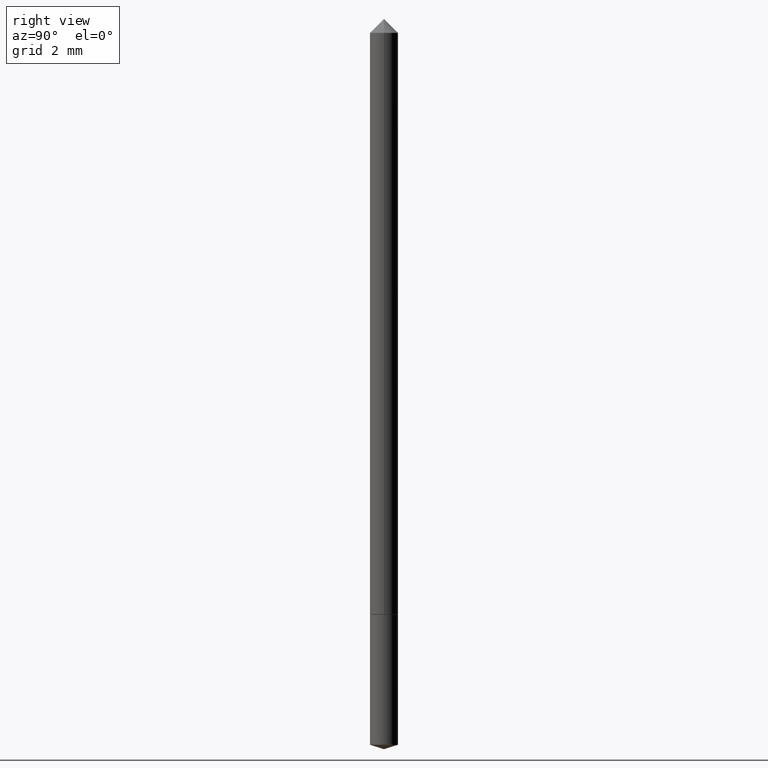
[diagram: clean part render]
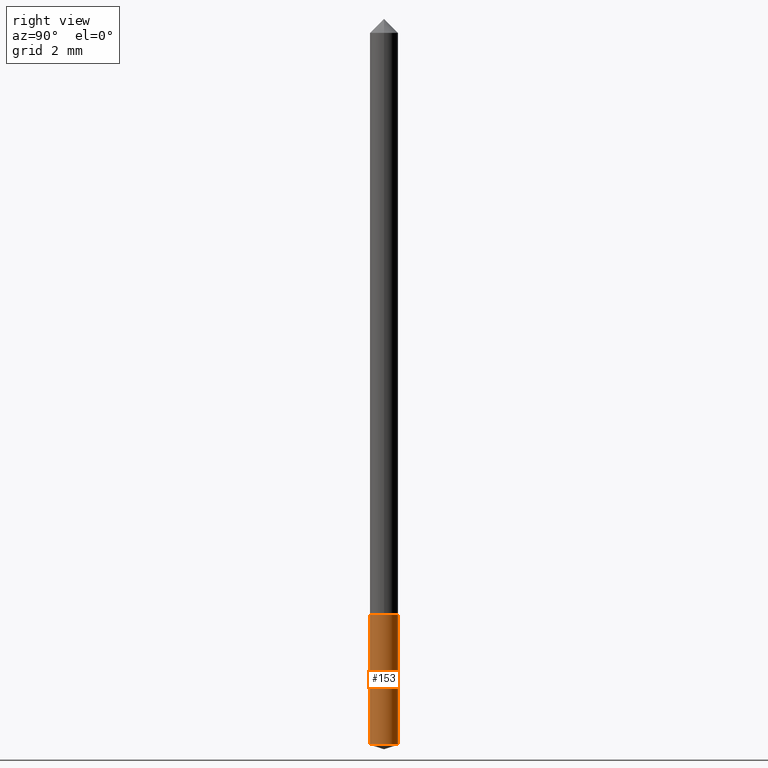
[diagram: same view with one face highlighted and labeled with its STEP entity id]
A machine part, right view. The second image highlights one B-rep face of the part: STEP entity #153.
In plain terms, the highlighted cylindrical surface (edge-blend (fillet) strip) has radius 0.475 mm, axis along (-0, 0, 1).
Its self-contained STEP definition (entity closure, byte-faithful):
#17 = ORIENTED_EDGE ( 'NONE', *, *, #246, .F. ) ;
#38 = DIRECTION ( 'NONE',  ( -2.445520407975564975E-29, 3.491407442142260390E-15, 1.000000000000000000 ) ) ;
#43 = ORIENTED_EDGE ( 'NONE', *, *, #90, .T. ) ;
#46 = CIRCLE ( 'NONE', #220, 0.01870000000000000134 ) ;
#49 = ORIENTED_EDGE ( 'NONE', *, *, #125, .F. ) ;
#70 = CARTESIAN_POINT ( 'NONE',  ( 1.328714915871626320E-16, 0.01869999999999657700, -0.9784039126479632253 ) ) ;
#73 = DIRECTION ( 'NONE',  ( -2.445520407975564975E-29, 3.491407442142260390E-15, 1.000000000000000000 ) ) ;
#77 = AXIS2_PLACEMENT_3D ( 'NONE', #202, #73, #248 ) ;
#79 = LINE ( 'NONE', #354, #183 ) ;
#88 = VERTEX_POINT ( 'NONE', #174 ) ;
#90 = EDGE_CURVE ( 'NONE', #363, #88, #79, .T. ) ;
#118 = DIRECTION ( 'NONE',  ( -2.445520407975564975E-29, 3.491407442142260390E-15, 1.000000000000000000 ) ) ;
#122 = LINE ( 'NONE', #235, #173 ) ;
#125 = EDGE_CURVE ( 'NONE', #335, #88, #46, .T. ) ;
#139 = EDGE_LOOP ( 'NONE', ( #304, #43, #49, #17 ) ) ;
#146 = EDGE_CURVE ( 'NONE', #313, #363, #226, .T. ) ;
#153 = ADVANCED_FACE ( 'NONE', ( #272 ), #301, .T. ) ;
#173 = VECTOR ( 'NONE', #118, 39.37007874015748143 ) ;
#174 = CARTESIAN_POINT ( 'NONE',  ( 1.328714915871626813E-16, 0.01869999999999719109, -0.8051999999999999158 ) ) ;
#183 = VECTOR ( 'NONE', #279, 39.37007874015748143 ) ;
#202 = CARTESIAN_POINT ( 'NONE',  ( 2.392665185862083405E-29, -3.416066203663757391E-15, -0.9784039126479632253 ) ) ;
#219 = CARTESIAN_POINT ( 'NONE',  ( 1.969091482740271834E-29, -2.811340774036500182E-15, -0.8051999999999999158 ) ) ;
#220 = AXIS2_PLACEMENT_3D ( 'NONE', #345, #224, #329 ) ;
#224 = DIRECTION ( 'NONE',  ( -2.445520407975564975E-29, 3.491407442142260390E-15, 1.000000000000000000 ) ) ;
#226 = CIRCLE ( 'NONE', #77, 0.01870000000000000134 ) ;
#235 = CARTESIAN_POINT ( 'NONE',  ( -1.305814020727134786E-16, -0.01870000000000281160, -0.8051999999999999158 ) ) ;
#246 = EDGE_CURVE ( 'NONE', #313, #335, #122, .T. ) ;
#248 = DIRECTION ( 'NONE',  ( -6.982962677686265922E-15, -1.000000000000000000, 0.000000000000000000 ) ) ;
#272 = FACE_OUTER_BOUND ( 'NONE', #139, .T. ) ;
#279 = DIRECTION ( 'NONE',  ( -2.445520407975564975E-29, 3.491407442142260390E-15, 1.000000000000000000 ) ) ;
#298 = CARTESIAN_POINT ( 'NONE',  ( -1.305814020727134786E-16, -0.01870000000000281160, -0.8051999999999999158 ) ) ;
#301 = CYLINDRICAL_SURFACE ( 'NONE', #331, 0.01870000000000000134 ) ;
#302 = DIRECTION ( 'NONE',  ( -6.982962677686265922E-15, -1.000000000000000000, 0.000000000000000000 ) ) ;
#304 = ORIENTED_EDGE ( 'NONE', *, *, #146, .T. ) ;
#313 = VERTEX_POINT ( 'NONE', #322 ) ;
#322 = CARTESIAN_POINT ( 'NONE',  ( -1.305814020727091892E-16, -0.01870000000000341528, -0.9784039126479632253 ) ) ;
#329 = DIRECTION ( 'NONE',  ( -6.982962677686265922E-15, -1.000000000000000000, 0.000000000000000000 ) ) ;
#331 = AXIS2_PLACEMENT_3D ( 'NONE', #219, #38, #302 ) ;
#335 = VERTEX_POINT ( 'NONE', #298 ) ;
#345 = CARTESIAN_POINT ( 'NONE',  ( 1.969091482740271834E-29, -2.811340774036500182E-15, -0.8051999999999999158 ) ) ;
#354 = CARTESIAN_POINT ( 'NONE',  ( 1.328714915871584165E-16, 0.01869999999999719109, -0.8051999999999999158 ) ) ;
#363 = VERTEX_POINT ( 'NONE', #70 ) ;